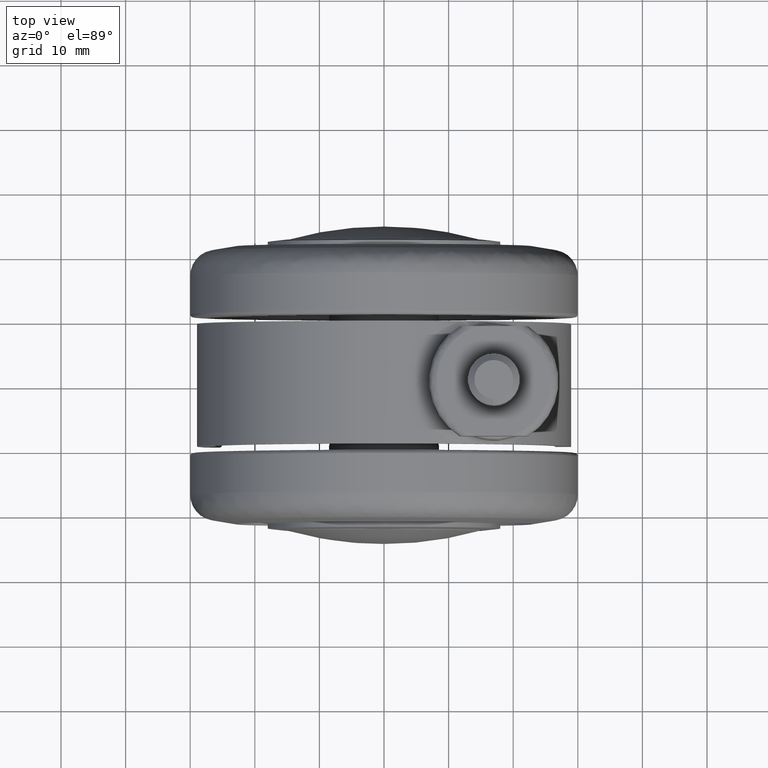
[diagram: clean part render]
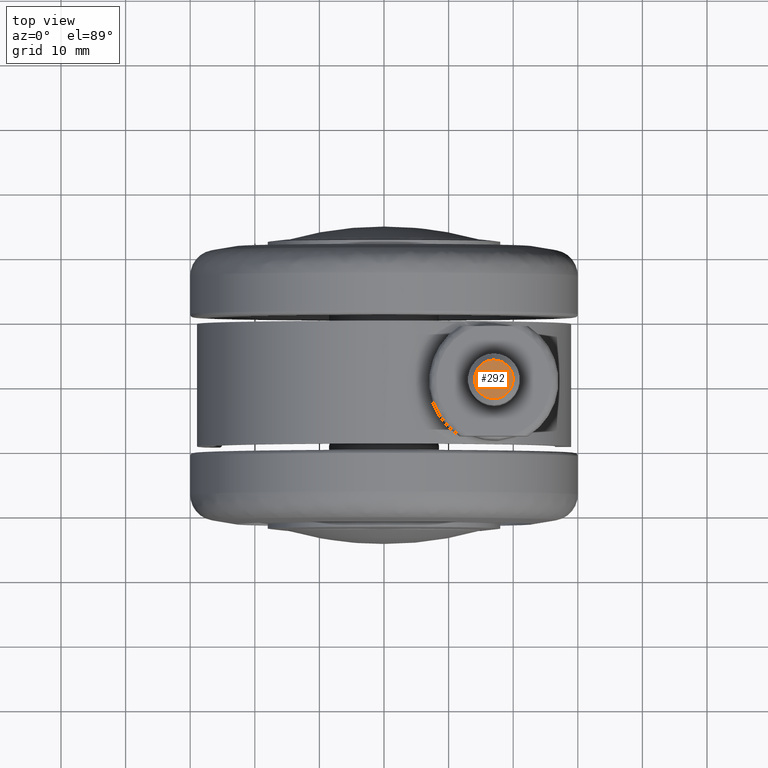
[diagram: same view with one face highlighted and labeled with its STEP entity id]
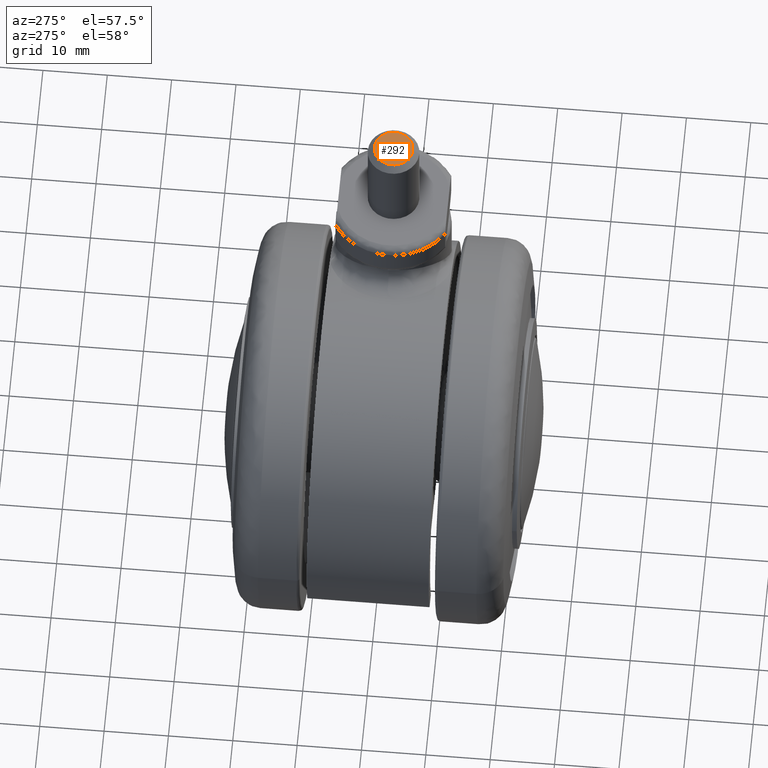
[diagram: same view with one face highlighted and labeled with its STEP entity id]
A machine part, top view. The second image highlights one B-rep face of the part: STEP entity #292.
A second angle (auxiliary view) of the same face is appended — the face is thin or edge-on in the first view.
In plain terms, the highlighted planar face has unit normal (0, -0, -1).
Its self-contained STEP definition (entity closure, byte-faithful):
#292=ADVANCED_FACE('',(#1666),#1665,.F.);
#1665=PLANE('',#4315);
#1666=FACE_OUTER_BOUND('',#4316,.T.);
#4312=CARTESIAN_POINT('',(-2.00000000000E+01,-6.23538290725E+00,6.90000000000E+00));
#4313=DIRECTION('',(1.00000000000E+00,0.00000000000E+00,-0.00000000000E+00));
#4314=DIRECTION('',(-0.00000000000E+00,0.00000000000E+00,-1.00000000000E+00));
#4315=AXIS2_PLACEMENT_3D('',#4312,#4313,#4314);
#4316=EDGE_LOOP('',(#5157,#5158));
#5157=ORIENTED_EDGE('',*,*,#5564,.F.);
#5158=ORIENTED_EDGE('',*,*,#5565,.F.);
#5564=EDGE_CURVE('',#7868,#7869,#7870,.T.);
#5565=EDGE_CURVE('',#7869,#7868,#7876,.T.);
#7868=VERTEX_POINT('',#9952);
#7869=VERTEX_POINT('',#9953);
#7870=CIRCLE('',#9957,3.00000000000E+00);
#7876=CIRCLE('',#9961,3.00000000000E+00);
#9952=CARTESIAN_POINT('',(-2.00000000000E+01,-1.48029736617E-16,3.00000000000E+00));
#9953=CARTESIAN_POINT('',(-2.00000000000E+01,0.00000000000E+00,-3.00000000000E+00));
#9954=CARTESIAN_POINT('',(-2.00000000000E+01,0.00000000000E+00,0.00000000000E+00));
#9955=DIRECTION('',(1.00000000000E+00,0.00000000000E+00,0.00000000000E+00));
#9956=DIRECTION('',(0.00000000000E+00,-1.22460635382E-16,-1.00000000000E+00));
#9957=AXIS2_PLACEMENT_3D('',#9954,#9955,#9956);
#9958=CARTESIAN_POINT('',(-2.00000000000E+01,0.00000000000E+00,0.00000000000E+00));
#9959=DIRECTION('',(1.00000000000E+00,0.00000000000E+00,0.00000000000E+00));
#9960=DIRECTION('',(0.00000000000E+00,-1.22460635382E-16,-1.00000000000E+00));
#9961=AXIS2_PLACEMENT_3D('',#9958,#9959,#9960);